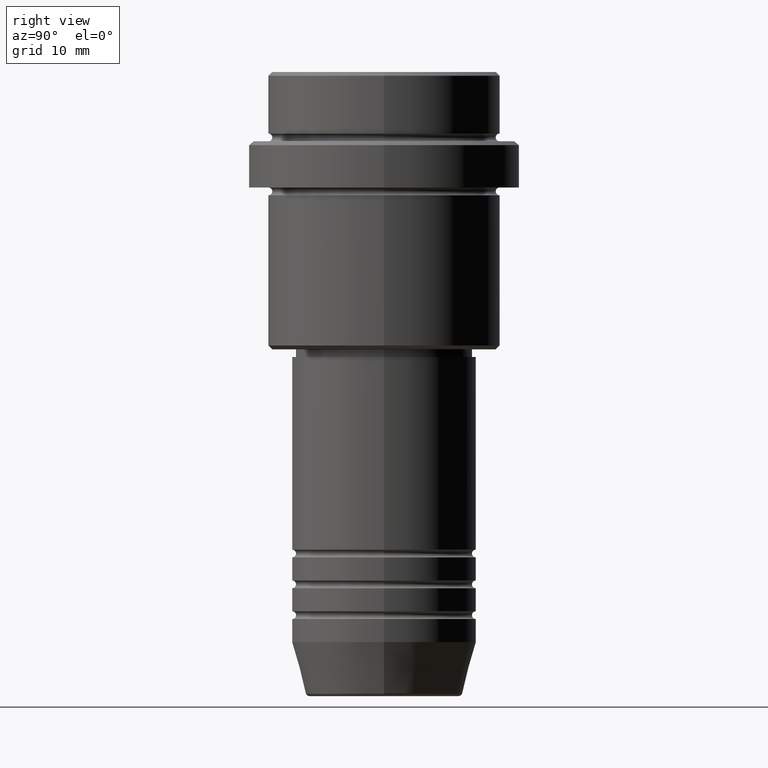
[diagram: clean part render]
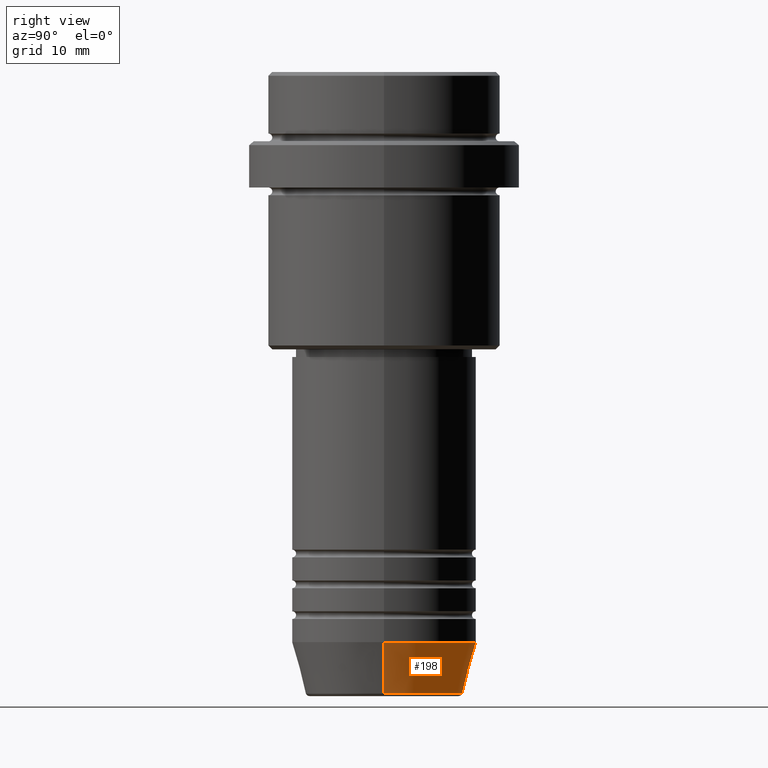
[diagram: same view with one face highlighted and labeled with its STEP entity id]
A machine part, right view. The second image highlights one B-rep face of the part: STEP entity #198.
In plain terms, the highlighted conical surface has half-angle 15 deg.
Its self-contained STEP definition (entity closure, byte-faithful):
#15 = DIRECTION ( 'NONE',  ( -0.2588190451025213501, 3.169619151431772337E-17, 0.9659258262890680902 ) ) ;
#38 = DIRECTION ( 'NONE',  ( 0.2588190451025213501, 0.000000000000000000, 0.9659258262890680902 ) ) ;
#52 = CIRCLE ( 'NONE', #631, 10.22365507213718949 ) ;
#64 = AXIS2_PLACEMENT_3D ( 'NONE', #740, #1374, #394 ) ;
#77 = CARTESIAN_POINT ( 'NONE',  ( -10.22365507213718949, 1.360806402472382744E-15, -80.62940952255125637 ) ) ;
#127 = CONICAL_SURFACE ( 'NONE', #64, 12.00000000000000000, 0.2617993877991500740 ) ;
#177 = EDGE_CURVE ( 'NONE', #1068, #1153, #1224, .T. ) ;
#198 = ADVANCED_FACE ( 'NONE', ( #1380 ), #127, .T. ) ;
#269 = ORIENTED_EDGE ( 'NONE', *, *, #1297, .F. ) ;
#389 = AXIS2_PLACEMENT_3D ( 'NONE', #802, #797, #1348 ) ;
#394 = DIRECTION ( 'NONE',  ( 1.000000000000000000, 0.000000000000000000, 0.000000000000000000 ) ) ;
#396 = LINE ( 'NONE', #1269, #1396 ) ;
#399 = CARTESIAN_POINT ( 'NONE',  ( 10.22365507213718949, 0.000000000000000000, -80.62940952255125637 ) ) ;
#456 = CIRCLE ( 'NONE', #389, 12.00000000000000000 ) ;
#574 = VECTOR ( 'NONE', #15, 1000.000000000000000 ) ;
#586 = ORIENTED_EDGE ( 'NONE', *, *, #177, .T. ) ;
#587 = DIRECTION ( 'NONE',  ( -0.000000000000000000, -0.000000000000000000, 1.000000000000000000 ) ) ;
#593 = CARTESIAN_POINT ( 'NONE',  ( 0.000000000000000000, 0.000000000000000000, -80.62940952255125637 ) ) ;
#615 = EDGE_CURVE ( 'NONE', #642, #946, #396, .T. ) ;
#631 = AXIS2_PLACEMENT_3D ( 'NONE', #593, #587, #887 ) ;
#642 = VERTEX_POINT ( 'NONE', #399 ) ;
#740 = CARTESIAN_POINT ( 'NONE',  ( 0.000000000000000000, 0.000000000000000000, -74.00000000000000000 ) ) ;
#785 = ORIENTED_EDGE ( 'NONE', *, *, #615, .F. ) ;
#790 = CARTESIAN_POINT ( 'NONE',  ( 12.00000000000000000, 0.000000000000000000, -74.00000000000000000 ) ) ;
#797 = DIRECTION ( 'NONE',  ( -0.000000000000000000, -0.000000000000000000, 1.000000000000000000 ) ) ;
#802 = CARTESIAN_POINT ( 'NONE',  ( 0.000000000000000000, 0.000000000000000000, -74.00000000000000000 ) ) ;
#887 = DIRECTION ( 'NONE',  ( 1.000000000000000000, 0.000000000000000000, 0.000000000000000000 ) ) ;
#946 = VERTEX_POINT ( 'NONE', #790 ) ;
#1068 = VERTEX_POINT ( 'NONE', #77 ) ;
#1082 = CARTESIAN_POINT ( 'NONE',  ( -12.00000000000000000, 1.469576158976823947E-15, -74.00000000000000000 ) ) ;
#1153 = VERTEX_POINT ( 'NONE', #1082 ) ;
#1177 = EDGE_LOOP ( 'NONE', ( #1260, #586, #269, #785 ) ) ;
#1224 = LINE ( 'NONE', #1237, #574 ) ;
#1237 = CARTESIAN_POINT ( 'NONE',  ( -12.00000000000000000, 1.469576158976823947E-15, -74.00000000000000000 ) ) ;
#1260 = ORIENTED_EDGE ( 'NONE', *, *, #1296, .T. ) ;
#1269 = CARTESIAN_POINT ( 'NONE',  ( 12.00000000000000000, 0.000000000000000000, -74.00000000000000000 ) ) ;
#1296 = EDGE_CURVE ( 'NONE', #642, #1068, #52, .T. ) ;
#1297 = EDGE_CURVE ( 'NONE', #946, #1153, #456, .T. ) ;
#1348 = DIRECTION ( 'NONE',  ( 1.000000000000000000, 0.000000000000000000, 0.000000000000000000 ) ) ;
#1374 = DIRECTION ( 'NONE',  ( -0.000000000000000000, -0.000000000000000000, 1.000000000000000000 ) ) ;
#1380 = FACE_OUTER_BOUND ( 'NONE', #1177, .T. ) ;
#1396 = VECTOR ( 'NONE', #38, 1000.000000000000000 ) ;